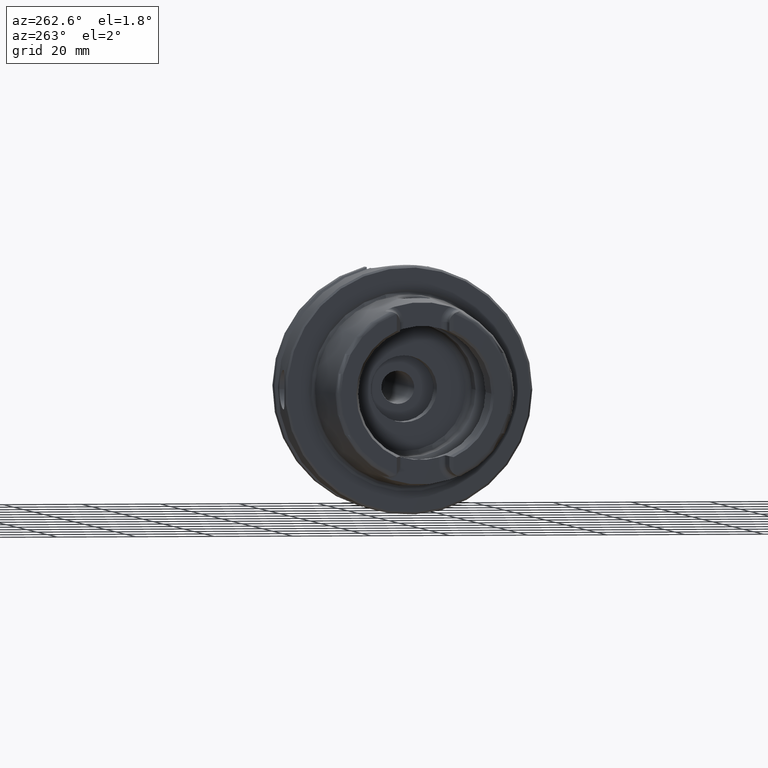
[diagram: clean part render]
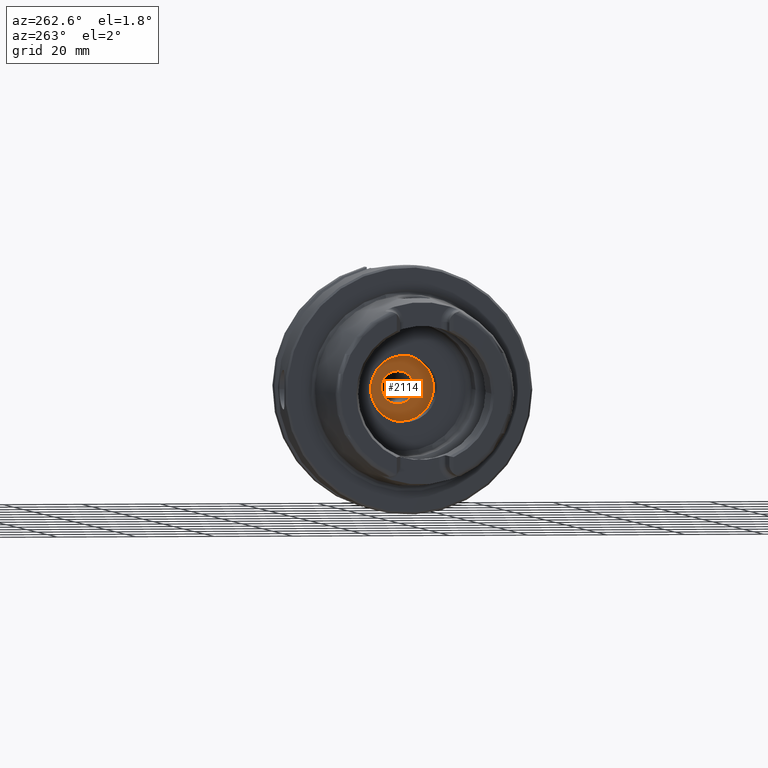
[diagram: same view with one face highlighted and labeled with its STEP entity id]
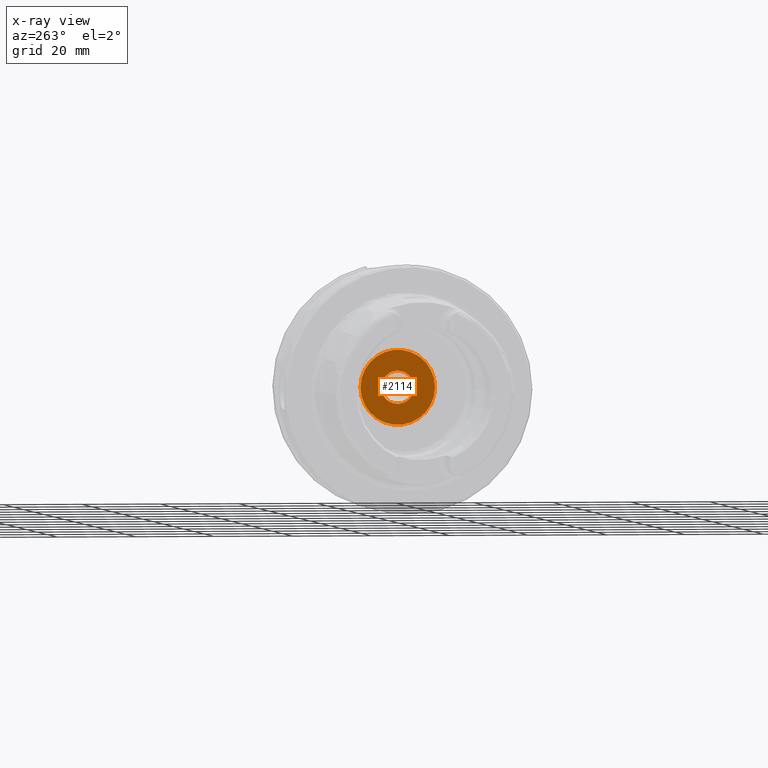
[diagram: x-ray of the same camera — body ghosted, the highlighted face saturated]
A machine part, auxiliary view. The second image highlights one B-rep face of the part: STEP entity #2114.
The next image is the same camera in x-ray: the body ghosted, the highlighted face saturated — about 0% of this face is hidden behind the body in this view.
In plain terms, the highlighted planar face has unit normal (1, 0, 0).
Its self-contained STEP definition (entity closure, byte-faithful):
#98=FACE_BOUND('',#452,.T.);
#140=PLANE('',#2378);
#321=FACE_OUTER_BOUND('',#451,.T.);
#451=EDGE_LOOP('',(#1931));
#452=EDGE_LOOP('',(#1932));
#712=CIRCLE('',#2191,4.2);
#801=CIRCLE('',#2379,9.5);
#850=VERTEX_POINT('',#3127);
#1013=VERTEX_POINT('',#4464);
#1069=EDGE_CURVE('',#850,#850,#712,.T.);
#1324=EDGE_CURVE('',#1013,#1013,#801,.T.);
#1931=ORIENTED_EDGE('',*,*,#1324,.T.);
#1932=ORIENTED_EDGE('',*,*,#1069,.T.);
#2114=ADVANCED_FACE('',(#321,#98),#140,.F.);
#2191=AXIS2_PLACEMENT_3D('',#3128,#2508,#2509);
#2378=AXIS2_PLACEMENT_3D('',#4463,#2968,#2969);
#2379=AXIS2_PLACEMENT_3D('',#4465,#2970,#2971);
#2508=DIRECTION('center_axis',(1.,0.,0.));
#2509=DIRECTION('ref_axis',(0.,0.,1.));
#2968=DIRECTION('center_axis',(1.,0.,0.));
#2969=DIRECTION('ref_axis',(0.,0.,-1.));
#2970=DIRECTION('center_axis',(-1.,0.,0.));
#2971=DIRECTION('ref_axis',(0.,0.,1.));
#3127=CARTESIAN_POINT('',(22.,5.14351655641888E-16,-4.2));
#3128=CARTESIAN_POINT('Origin',(22.,0.,0.));
#4463=CARTESIAN_POINT('Origin',(22.,9.5,0.));
#4464=CARTESIAN_POINT('',(22.,-9.5,1.16341445918999E-15));
#4465=CARTESIAN_POINT('Origin',(22.,0.,0.));